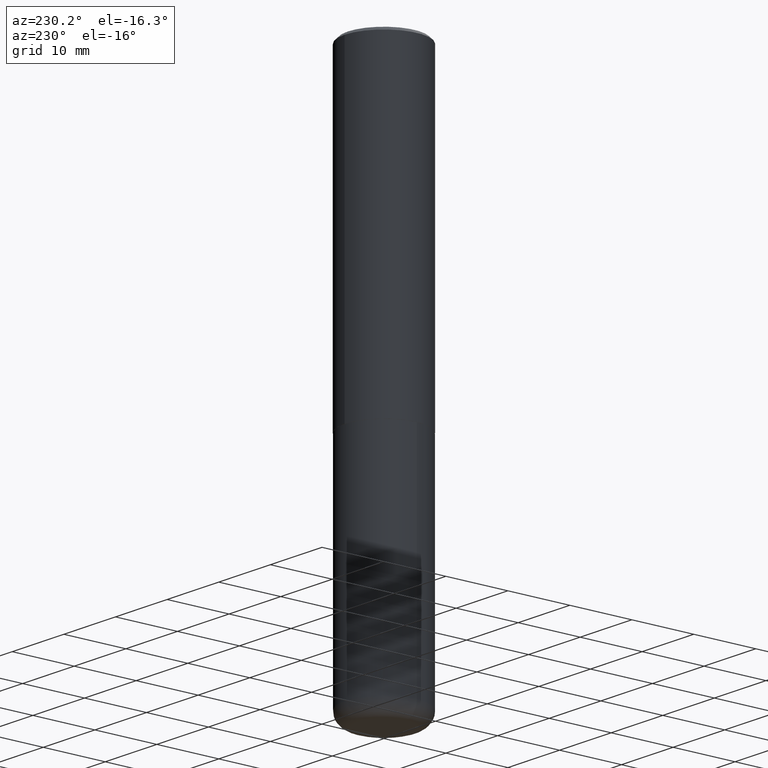
[diagram: clean part render]
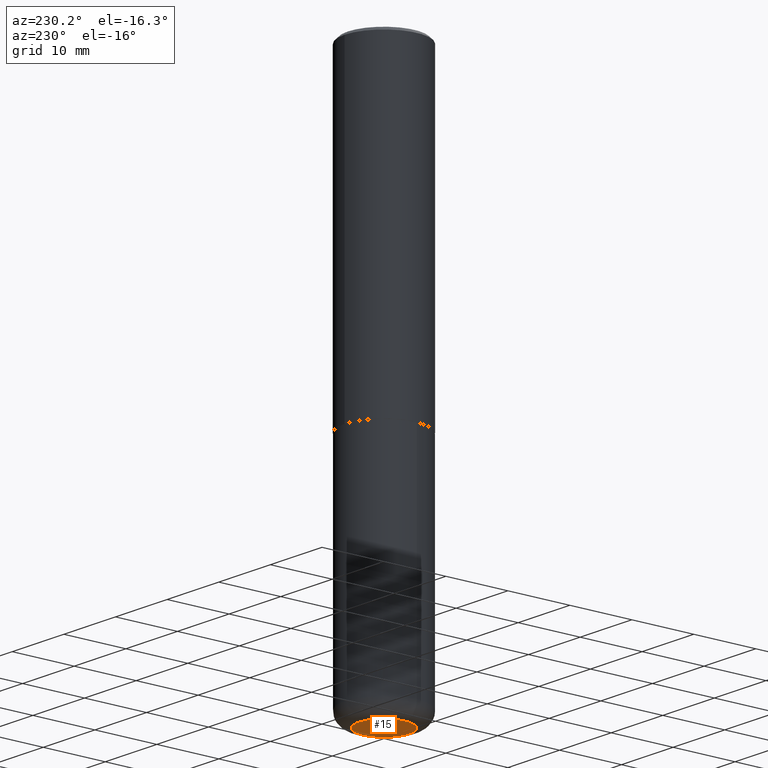
[diagram: same view with one face highlighted and labeled with its STEP entity id]
A machine part, auxiliary view. The second image highlights one B-rep face of the part: STEP entity #15.
In plain terms, the highlighted planar face has unit normal (0, -0, -1).
Its self-contained STEP definition (entity closure, byte-faithful):
#15 = ADVANCED_FACE ( 'NONE', ( #157 ), #65, .T. ) ;
#19 = AXIS2_PLACEMENT_3D ( 'NONE', #113, #85, #214 ) ;
#28 = AXIS2_PLACEMENT_3D ( 'NONE', #267, #331, #271 ) ;
#31 = EDGE_CURVE ( 'NONE', #63, #56, #339, .T. ) ;
#56 = VERTEX_POINT ( 'NONE', #323 ) ;
#63 = VERTEX_POINT ( 'NONE', #228 ) ;
#65 = PLANE ( 'NONE',  #114 ) ;
#85 = DIRECTION ( 'NONE',  ( -2.445468806185136597E-29, 3.491481338843145583E-15, 1.000000000000000000 ) ) ;
#113 = CARTESIAN_POINT ( 'NONE',  ( 8.559140821647976968E-29, -1.222018468595100619E-14, -3.499999999999999112 ) ) ;
#114 = AXIS2_PLACEMENT_3D ( 'NONE', #325, #371, #205 ) ;
#130 = EDGE_LOOP ( 'NONE', ( #188, #279 ) ) ;
#157 = FACE_OUTER_BOUND ( 'NONE', #130, .T. ) ;
#188 = ORIENTED_EDGE ( 'NONE', *, *, #31, .F. ) ;
#205 = DIRECTION ( 'NONE',  ( -1.000000000000000000, 6.982962677686265922E-15, -4.876176775795935793E-29 ) ) ;
#214 = DIRECTION ( 'NONE',  ( 1.000000000000000000, -6.982962677686259611E-15, 0.000000000000000000 ) ) ;
#228 = CARTESIAN_POINT ( 'NONE',  ( 0.1600000000000000033, -1.333745871438080791E-14, -3.499999999999999112 ) ) ;
#231 = EDGE_CURVE ( 'NONE', #56, #63, #333, .T. ) ;
#267 = CARTESIAN_POINT ( 'NONE',  ( 8.559140821647976968E-29, -1.222018468595100619E-14, -3.499999999999999112 ) ) ;
#271 = DIRECTION ( 'NONE',  ( 1.000000000000000000, -6.982962677686259611E-15, 0.000000000000000000 ) ) ;
#279 = ORIENTED_EDGE ( 'NONE', *, *, #231, .F. ) ;
#323 = CARTESIAN_POINT ( 'NONE',  ( -0.1600000000000000033, -1.060645541739486182E-14, -3.499999999999999112 ) ) ;
#325 = CARTESIAN_POINT ( 'NONE',  ( 1.690506257577845460E-28, -2.683497136698531760E-16, -3.499999999999999112 ) ) ;
#331 = DIRECTION ( 'NONE',  ( -2.445468806185136597E-29, 3.491481338843145583E-15, 1.000000000000000000 ) ) ;
#333 = CIRCLE ( 'NONE', #19, 0.1600000000000000033 ) ;
#339 = CIRCLE ( 'NONE', #28, 0.1600000000000000033 ) ;
#371 = DIRECTION ( 'NONE',  ( 2.438088387897960049E-29, -3.491481338843145188E-15, -1.000000000000000000 ) ) ;